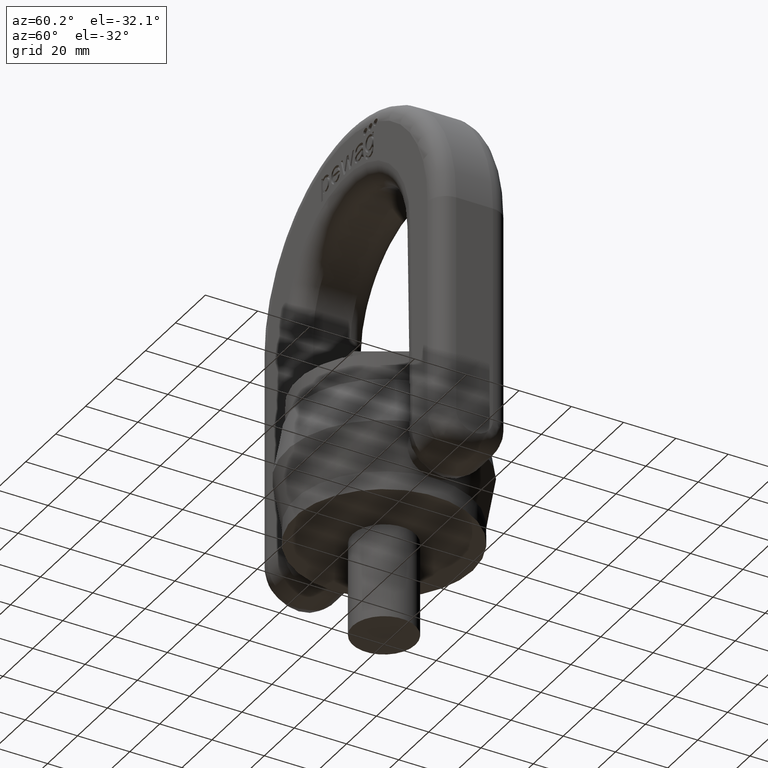
[diagram: clean part render]
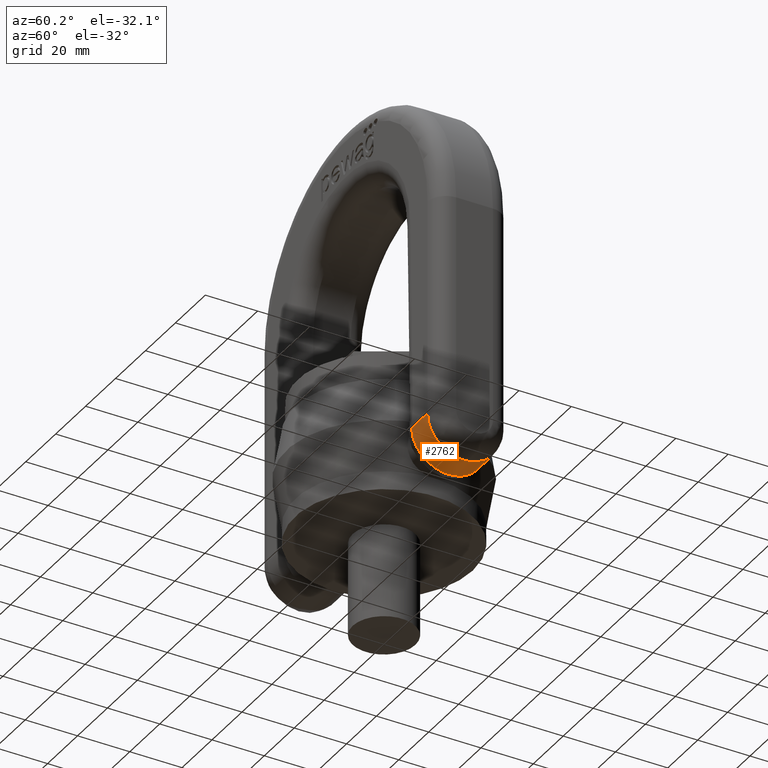
[diagram: same view with one face highlighted and labeled with its STEP entity id]
A machine part, auxiliary view. The second image highlights one B-rep face of the part: STEP entity #2762.
In plain terms, the highlighted cylindrical surface (partial cylindrical patch) has radius 14 mm, axis along (1, -0, -0).
Its self-contained STEP definition (entity closure, byte-faithful):
#319=B_SPLINE_CURVE_WITH_KNOTS('',3,(#6697,#6698,#6699,#6700,#6701,#6702,
#6703,#6704,#6705,#6706),.UNSPECIFIED.,.F.,.F.,(4,2,2,2,4),(0.,0.25,0.5,
0.75,1.),.UNSPECIFIED.);
#1791=LINE('',#6694,#2073);
#1792=LINE('',#6708,#2074);
#2073=VECTOR('',#5908,1.);
#2074=VECTOR('',#5909,1.);
#2425=FACE_OUTER_BOUND('',#3095,.T.);
#2762=ADVANCED_FACE('',(#2425),#2982,.T.);
#2982=CYLINDRICAL_SURFACE('',#5634,14.);
#3095=EDGE_LOOP('',(#3427,#3428,#3429,#3430));
#3427=ORIENTED_EDGE('',*,*,#4987,.F.);
#3428=ORIENTED_EDGE('',*,*,#4988,.T.);
#3429=ORIENTED_EDGE('',*,*,#4989,.F.);
#3430=ORIENTED_EDGE('',*,*,#4990,.T.);
#4575=VERTEX_POINT('',#6695);
#4576=VERTEX_POINT('',#6696);
#4577=VERTEX_POINT('',#6707);
#4578=VERTEX_POINT('',#6709);
#4987=EDGE_CURVE('',#4575,#4576,#1791,.T.);
#4988=EDGE_CURVE('',#4575,#4577,#319,.T.);
#4989=EDGE_CURVE('',#4578,#4577,#1792,.T.);
#4990=EDGE_CURVE('',#4578,#4576,#5553,.T.);
#5553=CIRCLE('',#5633,14.);
#5633=AXIS2_PLACEMENT_3D('',#6710,#5910,#5911);
#5634=AXIS2_PLACEMENT_3D('',#6711,#5912,#5913);
#5908=DIRECTION('',(1.,0.,-1.02768984071536E-15));
#5909=DIRECTION('',(-1.,2.34291072916505E-15,1.02768984071536E-15));
#5910=DIRECTION('',(-1.,0.,-9.29954853100969E-16));
#5911=DIRECTION('',(-9.91270557701036E-16,0.,1.));
#5912=DIRECTION('',(1.,-1.17450267510326E-15,-1.02768984071536E-15));
#5913=DIRECTION('',(9.91270557701036E-16,1.,0.));
#6694=CARTESIAN_POINT('',(-8.27290321775861E-14,-14.,17.5));
#6695=CARTESIAN_POINT('',(42.9328327841079,-14.,17.4999999999999));
#6696=CARTESIAN_POINT('',(53.5,-14.,17.4999999999999));
#6697=CARTESIAN_POINT('',(42.9328327841079,-14.,17.5));
#6698=CARTESIAN_POINT('',(42.9968523607535,-14.,13.8027573978496));
#6699=CARTESIAN_POINT('',(43.0590034281136,-12.4808070179669,10.1801636567434));
#6700=CARTESIAN_POINT('',(43.1472109928371,-7.3118424715239,5.01450811608086));
#6701=CARTESIAN_POINT('',(43.1728830333276,-3.68893595873363,3.49949164838436));
#6702=CARTESIAN_POINT('',(43.1728657658105,3.69279347351738,3.50050861733741));
#6703=CARTESIAN_POINT('',(43.1471528205245,7.31526636265921,5.01791493442742));
#6704=CARTESIAN_POINT('',(43.0590606255232,12.4774402559913,10.1768139311492));
#6705=CARTESIAN_POINT('',(42.9968523605429,13.9999999999999,13.8027574100098));
#6706=CARTESIAN_POINT('',(42.9328327841079,13.9999999999999,17.5));
#6707=CARTESIAN_POINT('',(42.9328327841078,13.9999999999999,17.4999999999999));
#6708=CARTESIAN_POINT('',(-4.99282819692755E-14,14.,17.5));
#6709=CARTESIAN_POINT('',(53.5000000000001,13.9999999999999,17.4999999999999));
#6710=CARTESIAN_POINT('',(53.5,-6.29021437893262E-14,17.4999999999999));
#6711=CARTESIAN_POINT('',(36.8682312488658,-4.33680868994202E-14,17.5));